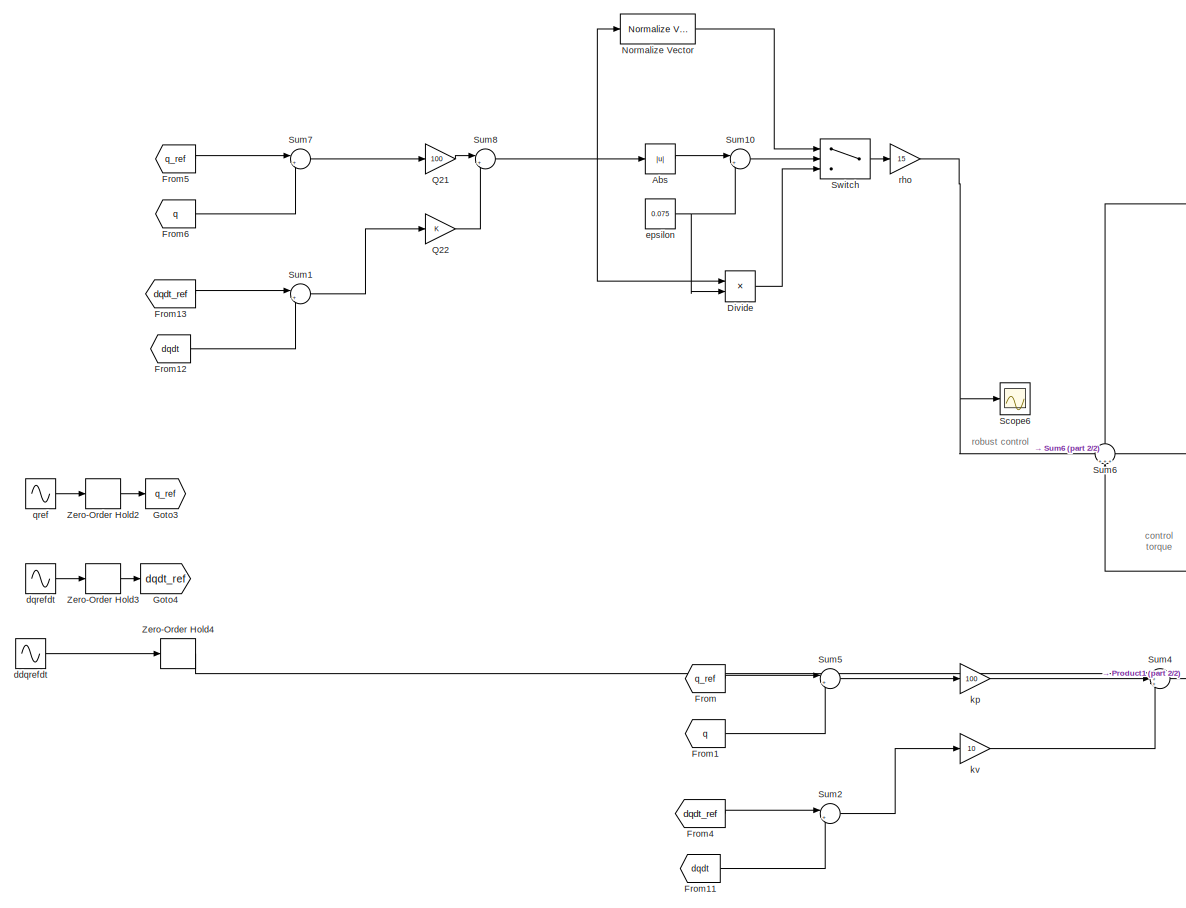
[diagram: root canvas - part 1/2, left side, full height]
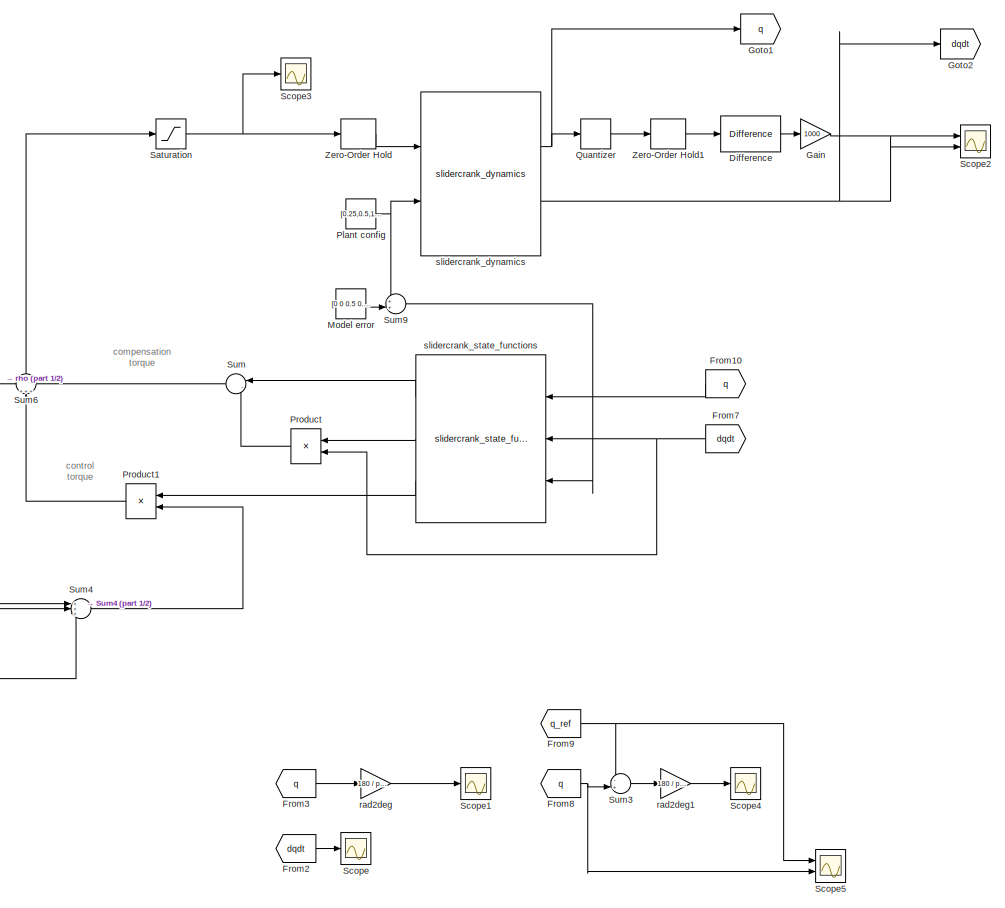
[diagram: root canvas - part 2/2, right side, full height]
MODEL slx_2dd466232b35
KIND model
CONFIG AbsTol = auto
CONFIG EnableMultiTasking = off
CONFIG FixedStep = 1e-3
CONFIG MaxStep = 1e-3
CONFIG MinStep = auto
CONFIG RelTol = 1e-3
CONFIG SampleTimeConstraint = Unconstrained
CONFIG Solver = VariableStepAuto
CONFIG SolverName = VariableStepAuto
CONFIG StartTime = 0.0
CONFIG StopTime = 5
BLOCK [Abs] Abs
  SaturateOnIntegerOverflow = off
BLOCK [Reference] Difference  REF=simulink/Discrete/Difference
  Ports = [1, 1]
  SourceBlock = simulink/Discrete/Difference
  SourceProductBaseCode = SL
  SourceProductName = Simulink
  SourceType = Difference
BLOCK [Product] Divide
  InputSameDT = off
  Inputs = */
  OutDataTypeStr = Inherit: Inherit via internal rule
  Ports = [2, 1]
  RndMeth = Floor
  SaturateOnIntegerOverflow = off
BLOCK [From] From
  GotoTag = q_ref
BLOCK [From] From1
  GotoTag = q
BLOCK [From] From10
  GotoTag = q
BLOCK [From] From11
  GotoTag = dqdt
BLOCK [From] From12
  GotoTag = dqdt
BLOCK [From] From13
  GotoTag = dqdt_ref
BLOCK [From] From2
  GotoTag = dqdt
BLOCK [From] From3
  GotoTag = q
BLOCK [From] From4
  GotoTag = dqdt_ref
BLOCK [From] From5
  GotoTag = q_ref
BLOCK [From] From6
  GotoTag = q
BLOCK [From] From7
  GotoTag = dqdt
BLOCK [From] From8
  GotoTag = q
BLOCK [From] From9
  GotoTag = q_ref
BLOCK [Gain] Gain
  Gain = 1000
  OutDataTypeStr = Inherit: Inherit via internal rule
  ParamDataTypeStr = Inherit: Inherit via internal rule
  SaturateOnIntegerOverflow = off
BLOCK [Goto] Goto1
  GotoTag = q
BLOCK [Goto] Goto2
  GotoTag = dqdt
BLOCK [Goto] Goto3
  GotoTag = q_ref
BLOCK [Goto] Goto4
  GotoTag = dqdt_ref
BLOCK [Constant] Model error
  Value = [0 0 0.5 0.5 1]
BLOCK [Reference] Normalize Vector  REF=vrlib/Utilities/Normalize Vector
  Ports = [1, 1]
  SourceBlock = vrlib/Utilities/Normalize Vector
  SourceProductBaseCode = VR
  SourceProductName = Simulink 3D Animation
  SourceType = Normalize Vector
BLOCK [Constant] Plant config
  Value = [0.25,0.5,1,2,3]
BLOCK [Product] Product
  InputSameDT = off
  OutDataTypeStr = Inherit: Inherit via internal rule
  Ports = [2, 1]
  RndMeth = Floor
  SaturateOnIntegerOverflow = off
BLOCK [Product] Product1
  InputSameDT = off
  OutDataTypeStr = Inherit: Inherit via internal rule
  Ports = [2, 1]
  RndMeth = Floor
  SaturateOnIntegerOverflow = off
BLOCK [Gain] Q21
  Gain = 100
  OutDataTypeStr = Inherit: Inherit via internal rule
  ParamDataTypeStr = Inherit: Inherit via internal rule
  SaturateOnIntegerOverflow = off
BLOCK [Gain] Q22
  OutDataTypeStr = Inherit: Inherit via internal rule
  ParamDataTypeStr = Inherit: Inherit via internal rule
  SaturateOnIntegerOverflow = off
BLOCK [Quantizer] Quantizer
  QuantizationInterval = 2*pi()/4096
BLOCK [Saturate] Saturation
  InputPortMap = u0
  LinearizeAsGain = off
  LowerLimit = -45
  Ports = [1, 1]
  UpperLimit = 45
BLOCK [Scope] Scope
  NumInputPorts = 1
  Ports = [1]
  ScopeSpecificationString = Simulink.scopes.TimeScopeBlockCfg('CurrentConfiguration', extmgr.ConfigurationSet(extmgr.Configuration('Core','General UI',true),extmgr.Configuration('Core','Source UI',true),extmgr.Configuration('Sources','WiredSimulink',true),extmgr.Configuration('Visuals','Time Domain',true,'SerializedDisplays',{struct('MinYLimReal','-13.15379','MaxYLimReal','15.83456','YLabelReal','','MinYLimMag','0.00000','Ma...<+1378ch>
BLOCK [Scope] Scope1
  NumInputPorts = 1
  Ports = [1]
  ScopeSpecificationString = Simulink.scopes.TimeScopeBlockCfg('CurrentConfiguration', extmgr.ConfigurationSet(extmgr.Configuration('Core','General UI',true),extmgr.Configuration('Core','Source UI',true),extmgr.Configuration('Sources','WiredSimulink',true,'DataLoggingVariableName','ScopeData1'),extmgr.Configuration('Visuals','Time Domain',true,'SerializedDisplays',{struct('MinYLimReal','-221.13211','MaxYLimReal','247.05492','...<+1428ch>
BLOCK [Scope] Scope2
  NumInputPorts = 2
  Ports = [2]
  ScopeSpecificationString = Simulink.scopes.TimeScopeBlockCfg('CurrentConfiguration', extmgr.ConfigurationSet(extmgr.Configuration('Core','General UI',true),extmgr.Configuration('Core','Source UI',true),extmgr.Configuration('Sources','WiredSimulink',true,'DataLoggingVariableName','ScopeData1'),extmgr.Configuration('Visuals','Time Domain',true,'SerializedDisplays',{struct('MinYLimReal','-10.88788','MaxYLimReal','14.21287','YL...<+1442ch>
BLOCK [Scope] Scope3
  NumInputPorts = 1
  Ports = [1]
  ScopeSpecificationString = Simulink.scopes.TimeScopeBlockCfg('CurrentConfiguration', extmgr.ConfigurationSet(extmgr.Configuration('Core','General UI',true),extmgr.Configuration('Core','Source UI',true),extmgr.Configuration('Sources','WiredSimulink',true,'DataLoggingVariableName','ScopeData2'),extmgr.Configuration('Visuals','Time Domain',true,'SerializedDisplays',{struct('MinYLimReal','-56.11638','MaxYLimReal','55.04738','YL...<+1404ch>
BLOCK [Scope] Scope4
  NumInputPorts = 1
  Ports = [1]
  ScopeSpecificationString = Simulink.scopes.TimeScopeBlockCfg('CurrentConfiguration', extmgr.ConfigurationSet(extmgr.Configuration('Core','General UI',true),extmgr.Configuration('Core','Source UI',true),extmgr.Configuration('Sources','WiredSimulink',true,'DataLoggingVariableName','ScopeData1'),extmgr.Configuration('Visuals','Time Domain',true,'SerializedDisplays',{struct('MinYLimReal','-9.85041','MaxYLimReal','7.33714','YLab...<+1714ch>
BLOCK [Scope] Scope5
  NumInputPorts = 2
  Ports = [2]
  ScopeSpecificationString = Simulink.scopes.TimeScopeBlockCfg('CurrentConfiguration', extmgr.ConfigurationSet(extmgr.Configuration('Core','General UI',true),extmgr.Configuration('Core','Source UI',true),extmgr.Configuration('Sources','WiredSimulink',true,'DataLoggingVariableName','ScopeData2'),extmgr.Configuration('Visuals','Time Domain',true,'SerializedDisplays',{struct('MinYLimReal','-1.25365','MaxYLimReal','1.28285','YLab...<+1780ch>
BLOCK [Scope] Scope6
  NumInputPorts = 1
  Ports = [1]
  ScopeSpecificationString = Simulink.scopes.TimeScopeBlockCfg('CurrentConfiguration', extmgr.ConfigurationSet(extmgr.Configuration('Core','General UI',true),extmgr.Configuration('Core','Source UI',true),extmgr.Configuration('Sources','WiredSimulink',true,'DataLoggingVariableName','ScopeData3'),extmgr.Configuration('Visuals','Time Domain',true,'SerializedDisplays',{struct('MinYLimReal','-18.75','MaxYLimReal','18.75','YLabelRe...<+1425ch>
BLOCK [Sum] Sum
  IconShape = round
  InputSameDT = off
  Inputs = |-+
  OutDataTypeStr = Inherit: Inherit via internal rule
  Ports = [2, 1]
  SaturateOnIntegerOverflow = off
BLOCK [Sum] Sum1
  IconShape = round
  InputSameDT = off
  Inputs = |+-
  OutDataTypeStr = Inherit: Inherit via internal rule
  Ports = [2, 1]
  SaturateOnIntegerOverflow = off
BLOCK [Sum] Sum10
  IconShape = round
  InputSameDT = off
  Inputs = |+-
  OutDataTypeStr = Inherit: Inherit via internal rule
  Ports = [2, 1]
  SaturateOnIntegerOverflow = off
BLOCK [Sum] Sum2
  IconShape = round
  InputSameDT = off
  Inputs = |+-
  OutDataTypeStr = Inherit: Inherit via internal rule
  Ports = [2, 1]
  SaturateOnIntegerOverflow = off
BLOCK [Sum] Sum3
  IconShape = round
  InputSameDT = off
  Inputs = -+|
  OutDataTypeStr = Inherit: Inherit via internal rule
  Ports = [2, 1]
  SaturateOnIntegerOverflow = off
BLOCK [Sum] Sum4
  IconShape = round
  InputSameDT = off
  Inputs = +++
  OutDataTypeStr = Inherit: Inherit via internal rule
  Ports = [3, 1]
  SaturateOnIntegerOverflow = off
BLOCK [Sum] Sum5
  IconShape = round
  InputSameDT = off
  Inputs = |+-
  OutDataTypeStr = Inherit: Inherit via internal rule
  Ports = [2, 1]
  SaturateOnIntegerOverflow = off
BLOCK [Sum] Sum6
  IconShape = round
  InputSameDT = off
  Inputs = +++
  OutDataTypeStr = Inherit: Inherit via internal rule
  Ports = [3, 1]
  SaturateOnIntegerOverflow = off
BLOCK [Sum] Sum7
  IconShape = round
  InputSameDT = off
  Inputs = |+-
  OutDataTypeStr = Inherit: Inherit via internal rule
  Ports = [2, 1]
  SaturateOnIntegerOverflow = off
BLOCK [Sum] Sum8
  IconShape = round
  InputSameDT = off
  Inputs = |++
  OutDataTypeStr = Inherit: Inherit via internal rule
  Ports = [2, 1]
  SaturateOnIntegerOverflow = off
BLOCK [Sum] Sum9
  IconShape = round
  InputSameDT = off
  Inputs = ++|
  OutDataTypeStr = Inherit: Inherit via internal rule
  Ports = [2, 1]
  SaturateOnIntegerOverflow = off
BLOCK [Switch] Switch
  Criteria = u2 > Threshold
  InputSameDT = off
  SaturateOnIntegerOverflow = off
BLOCK [ZeroOrderHold] Zero-Order Hold
  SampleTime = 1e-3
BLOCK [ZeroOrderHold] Zero-Order Hold1
  SampleTime = 1e-3
BLOCK [ZeroOrderHold] Zero-Order Hold2
  Commented = through
  SampleTime = 1e-3
BLOCK [ZeroOrderHold] Zero-Order Hold3
  Commented = through
  SampleTime = 1e-3
BLOCK [ZeroOrderHold] Zero-Order Hold4
  Commented = through
  SampleTime = 1e-3
BLOCK [Sin] ddqrefdt
  Amplitude = -100
  Frequency = 10
  Ports = [0, 1]
  SampleTime = 0
BLOCK [Sin] dqrefdt
  Amplitude = 10
  Frequency = 10
  Phase = pi()/2*10/2
  Ports = [0, 1]
  SampleTime = 0
BLOCK [Constant] epsilon
  Value = 0.075
BLOCK [Gain] kp
  Gain = 100
  OutDataTypeStr = Inherit: Inherit via internal rule
  ParamDataTypeStr = Inherit: Inherit via internal rule
  SaturateOnIntegerOverflow = off
BLOCK [Gain] kv
  Gain = 10
  OutDataTypeStr = Inherit: Inherit via internal rule
  ParamDataTypeStr = Inherit: Inherit via internal rule
  SaturateOnIntegerOverflow = off
BLOCK [Sin] qref
  Frequency = 10
  Ports = [0, 1]
  SampleTime = 0
BLOCK [Gain] rad2deg
  Gain = 180 / pi()
  OutDataTypeStr = Inherit: Inherit via internal rule
  ParamDataTypeStr = Inherit: Inherit via internal rule
  SaturateOnIntegerOverflow = off
BLOCK [Gain] rad2deg1
  Gain = 180 / pi()
  OutDataTypeStr = Inherit: Inherit via internal rule
  ParamDataTypeStr = Inherit: Inherit via internal rule
  SaturateOnIntegerOverflow = off
BLOCK [Gain] rho
  Gain = 15
  OutDataTypeStr = Inherit: Inherit via internal rule
  ParamDataTypeStr = Inherit: Inherit via internal rule
  SaturateOnIntegerOverflow = off
BLOCK [Reference] slidercrank_dynamics  REF=slidercrank_basic_library_v1/slidercrank_dynamics  (lib defined in slx_64627835eefe)
  Ports = [2, 2]
  SourceBlock = slidercrank_basic_library_v1/slidercrank_dynamics
  SourceType = SubSystem
BLOCK [Reference] slidercrank_state_functions  REF=slidercrank_basic_library_v1/slidercrank_state_functions  (lib defined in slx_64627835eefe)
  Ports = [3, 3]
  SourceBlock = slidercrank_basic_library_v1/slidercrank_state_functions
  SourceType = SubSystem
ANNOTATION (root): compensation torque
ANNOTATION (root): control torque
ANNOTATION (root): robust control
LINE Abs:1 -> Sum10:1
LINE Difference:1 -> Gain:1
LINE Divide:1 -> Switch:3
LINE From10:1 -> slidercrank_state_functions:1
LINE From11:1 -> Sum2:2
LINE From12:1 -> Sum1:2
LINE From13:1 -> Sum1:1
LINE From1:1 -> Sum5:2
LINE From2:1 -> Scope:1
LINE From3:1 -> rad2deg:1
LINE From4:1 -> Sum2:1
LINE From5:1 -> Sum7:1
LINE From6:1 -> Sum7:2
NET From7:1 -> Product:2, slidercrank_state_functions:2
NET From8:1 -> Scope5:2, Sum3:2
NET From9:1 -> Scope5:1, Sum3:1
LINE From:1 -> Sum5:1
LINE Gain:1 -> Scope2:1
LINE Model error:1 -> Sum9:2
LINE Normalize Vector:1 -> Switch:1
NET Plant config:1 -> Sum9:1, slidercrank_dynamics:2
LINE Product1:1 -> Sum6:2
LINE Product:1 -> Sum:2
LINE Q21:1 -> Sum8:1
LINE Q22:1 -> Sum8:2
LINE Quantizer:1 -> Zero-Order Hold1:1
NET Saturation:1 -> Scope3:1, Zero-Order Hold:1
LINE Sum10:1 -> Switch:2
LINE Sum1:1 -> Q22:1
LINE Sum2:1 -> kv:1
LINE Sum3:1 -> rad2deg1:1
LINE Sum4:1 -> Product1:2
LINE Sum5:1 -> kp:1
LINE Sum6:1 -> Saturation:1
LINE Sum7:1 -> Q21:1
NET Sum8:1 -> Abs:1, Divide:1, Normalize Vector:1
LINE Sum9:1 -> slidercrank_state_functions:3
LINE Sum:1 -> Sum6:3
LINE Switch:1 -> rho:1
LINE Zero-Order Hold1:1 -> Difference:1
LINE Zero-Order Hold2:1 -> Goto3:1
LINE Zero-Order Hold3:1 -> Goto4:1
LINE Zero-Order Hold4:1 -> Sum4:1
LINE Zero-Order Hold:1 -> slidercrank_dynamics:1
LINE ddqrefdt:1 -> Zero-Order Hold4:1
LINE dqrefdt:1 -> Zero-Order Hold3:1
NET epsilon:1 -> Divide:2, Sum10:2
LINE kp:1 -> Sum4:2
LINE kv:1 -> Sum4:3
LINE qref:1 -> Zero-Order Hold2:1
LINE rad2deg1:1 -> Scope4:1
LINE rad2deg:1 -> Scope1:1
NET rho:1 -> Scope6:1, Sum6:1
NET slidercrank_dynamics:1 -> Goto1:1, Quantizer:1
NET slidercrank_dynamics:2 -> Goto2:1, Scope2:2
LINE slidercrank_state_functions:1 -> Sum:1
LINE slidercrank_state_functions:2 -> Product:1
LINE slidercrank_state_functions:3 -> Product1:1
note: NET lines group one-source signal fan-out (src -> all destinations, sorted); 1:1 wires keep LINE
